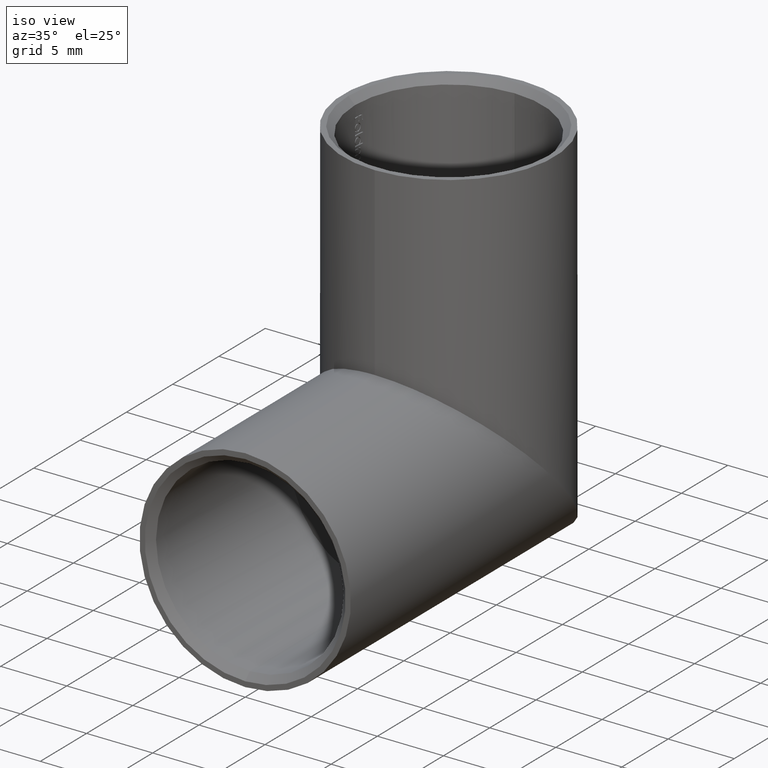
[diagram: clean part render]
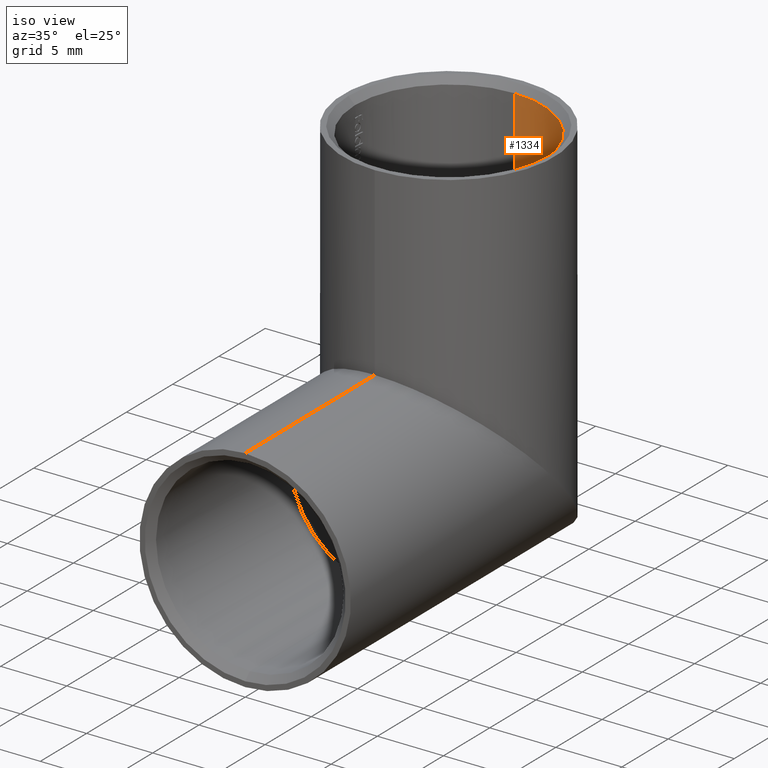
[diagram: same view with one face highlighted and labeled with its STEP entity id]
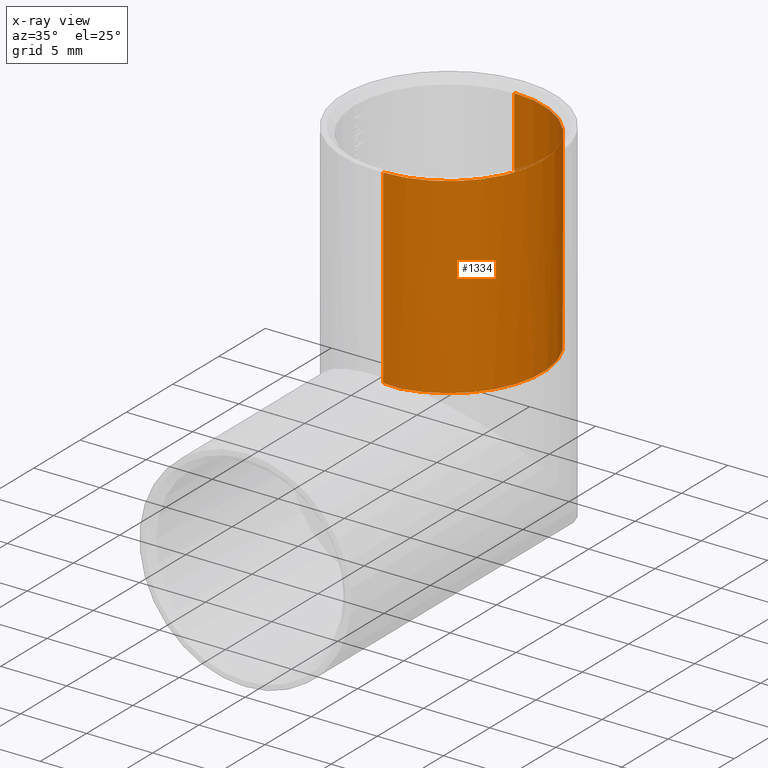
[diagram: x-ray of the same camera — body ghosted, the highlighted face saturated]
A machine part, iso view. The second image highlights one B-rep face of the part: STEP entity #1334.
The next image is the same camera in x-ray: the body ghosted, the highlighted face saturated — about 0% of this face is hidden behind the body in this view.
In plain terms, the highlighted cylindrical surface (partial cylindrical patch) has radius 7.1 mm, axis along (-0, -0, 1).
Its self-contained STEP definition (entity closure, byte-faithful):
#325 = CARTESIAN_POINT ( 'NONE',  ( 0.000000000000000000, 21.99999999999998579, 21.49999999999999289 ) ) ;
#363 = CARTESIAN_POINT ( 'NONE',  ( 0.000000000000000000, 14.89999999999998437, 21.49999999999999289 ) ) ;
#426 = DIRECTION ( 'NONE',  ( -0.000000000000000000, -2.220446049250313081E-16, 1.000000000000000000 ) ) ;
#475 = CARTESIAN_POINT ( 'NONE',  ( 0.7948931556050686797, 14.93341190360426651, 7.066588096395721941 ) ) ;
#637 = DIRECTION ( 'NONE',  ( 1.000000000000000000, 0.000000000000000000, 0.000000000000000000 ) ) ;
#643 = DIRECTION ( 'NONE',  ( -0.000000000000000000, 2.220446049250313081E-16, -1.000000000000000000 ) ) ;
#901 = CIRCLE ( 'NONE', #6589, 7.099999999999999645 ) ;
#1145 = VERTEX_POINT ( 'NONE', #11515 ) ;
#1334 = ADVANCED_FACE ( 'NONE', ( #10839 ), #8293, .F. ) ;
#1340 = VERTEX_POINT ( 'NONE', #12108 ) ;
#1580 = ORIENTED_EDGE ( 'NONE', *, *, #3724, .T. ) ;
#2444 = EDGE_CURVE ( 'NONE', #1340, #2653, #3828, .T. ) ;
#2468 = CARTESIAN_POINT ( 'NONE',  ( 8.694992273946207746E-16, 29.09999999999998721, 6.999999999999990230 ) ) ;
#2653 = VERTEX_POINT ( 'NONE', #9345 ) ;
#2856 = VERTEX_POINT ( 'NONE', #363 ) ;
#3306 = DIRECTION ( 'NONE',  ( -0.000000000000000000, -2.220446049250313081E-16, 1.000000000000000000 ) ) ;
#3519 = AXIS2_PLACEMENT_3D ( 'NONE', #8274, #4540, #637 ) ;
#3547 = VERTEX_POINT ( 'NONE', #11223 ) ;
#3724 = EDGE_CURVE ( 'NONE', #3547, #1145, #6275, .T. ) ;
#3828 = LINE ( 'NONE', #2468, #7090 ) ;
#3876 = EDGE_CURVE ( 'NONE', #1145, #2856, #12140, .T. ) ;
#4128 = VERTEX_POINT ( 'NONE', #11970 ) ;
#4443 = AXIS2_PLACEMENT_3D ( 'NONE', #6324, #643, #10155 ) ;
#4540 = DIRECTION ( 'NONE',  ( -0.000000000000000000, -0.000000000000000000, 1.000000000000000000 ) ) ;
#5114 = ORIENTED_EDGE ( 'NONE', *, *, #8077, .T. ) ;
#5558 = ORIENTED_EDGE ( 'NONE', *, *, #12256, .T. ) ;
#5877 = VECTOR ( 'NONE', #426, 1000.000000000000000 ) ;
#6119 = CIRCLE ( 'NONE', #4443, 7.099999999999998757 ) ;
#6275 =( BOUNDED_CURVE ( )  B_SPLINE_CURVE ( 3, ( #8166, #475, #8209, #11082 ),
 .UNSPECIFIED., .F., .F. ) 
 B_SPLINE_CURVE_WITH_KNOTS ( ( 4, 4 ),
 ( 6.115151417694612235, 6.283185307179586232 ),
 .UNSPECIFIED. ) 
 CURVE ( )  GEOMETRIC_REPRESENTATION_ITEM ( )  RATIONAL_B_SPLINE_CURVE ( ( 1.000000000000000000, 0.9976484347653343798, 0.9976484347653343798, 1.000000000000000000 ) ) 
 REPRESENTATION_ITEM ( '' )  );
#6324 = CARTESIAN_POINT ( 'NONE',  ( 0.000000000000000000, 21.99999999999998934, 6.999999999999988454 ) ) ;
#6589 = AXIS2_PLACEMENT_3D ( 'NONE', #325, #9028, #8913 ) ;
#6734 = ORIENTED_EDGE ( 'NONE', *, *, #2444, .F. ) ;
#6786 = EDGE_LOOP ( 'NONE', ( #6734, #5114, #1580, #8276, #5558, #10410 ) ) ;
#7090 = VECTOR ( 'NONE', #3306, 1000.000000000000000 ) ;
#7598 = EDGE_CURVE ( 'NONE', #4128, #2653, #901, .T. ) ;
#7984 = CIRCLE ( 'NONE', #3519, 7.099999999999999645 ) ;
#8077 = EDGE_CURVE ( 'NONE', #1340, #3547, #6119, .T. ) ;
#8166 = CARTESIAN_POINT ( 'NONE',  ( 1.187434208703855187, 15.00000000000000000, 6.999999999999987566 ) ) ;
#8209 = CARTESIAN_POINT ( 'NONE',  ( 0.3981487824287715527, 14.89999999999998970, 7.099999999999998757 ) ) ;
#8274 = CARTESIAN_POINT ( 'NONE',  ( 0.000000000000000000, 21.99999999999998579, 21.49999999999999289 ) ) ;
#8276 = ORIENTED_EDGE ( 'NONE', *, *, #3876, .T. ) ;
#8293 = CYLINDRICAL_SURFACE ( 'NONE', #8843, 7.099999999999998757 ) ;
#8384 = CARTESIAN_POINT ( 'NONE',  ( 0.000000000000000000, 21.99999999999998934, 6.999999999999988454 ) ) ;
#8843 = AXIS2_PLACEMENT_3D ( 'NONE', #8384, #9252, #9342 ) ;
#8913 = DIRECTION ( 'NONE',  ( 1.000000000000000000, 0.000000000000000000, 0.000000000000000000 ) ) ;
#9028 = DIRECTION ( 'NONE',  ( -0.000000000000000000, -0.000000000000000000, 1.000000000000000000 ) ) ;
#9252 = DIRECTION ( 'NONE',  ( -0.000000000000000000, -2.220446049250313081E-16, 1.000000000000000000 ) ) ;
#9342 = DIRECTION ( 'NONE',  ( 0.000000000000000000, -1.000000000000000000, -2.443272501375784959E-16 ) ) ;
#9345 = CARTESIAN_POINT ( 'NONE',  ( 8.694992273946209718E-16, 29.09999999999998721, 21.49999999999999289 ) ) ;
#10051 = CARTESIAN_POINT ( 'NONE',  ( 0.000000000000000000, 14.89999999999998970, 6.999999999999987566 ) ) ;
#10155 = DIRECTION ( 'NONE',  ( 0.000000000000000000, 1.000000000000000000, 2.443272501375784959E-16 ) ) ;
#10410 = ORIENTED_EDGE ( 'NONE', *, *, #7598, .T. ) ;
#10839 = FACE_OUTER_BOUND ( 'NONE', #6786, .T. ) ;
#11082 = CARTESIAN_POINT ( 'NONE',  ( 0.000000000000000000, 14.89999999999998970, 7.100000000000000533 ) ) ;
#11223 = CARTESIAN_POINT ( 'NONE',  ( 1.187434208703855187, 15.00000000000000000, 6.999999999999987566 ) ) ;
#11515 = CARTESIAN_POINT ( 'NONE',  ( 0.000000000000000000, 14.89999999999998970, 7.100000000000000533 ) ) ;
#11970 = CARTESIAN_POINT ( 'NONE',  ( 7.099999999999999645, 21.99999999999998579, 21.49999999999999289 ) ) ;
#12108 = CARTESIAN_POINT ( 'NONE',  ( 8.694992273946209718E-16, 29.09999999999998721, 6.999999999999990230 ) ) ;
#12140 = LINE ( 'NONE', #10051, #5877 ) ;
#12256 = EDGE_CURVE ( 'NONE', #2856, #4128, #7984, .T. ) ;